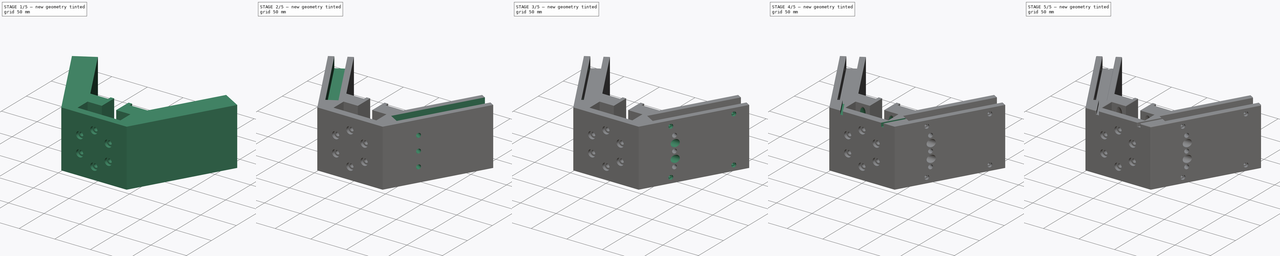
[diagram: build sequence overview — one tinted view per stage of 5, left to right]
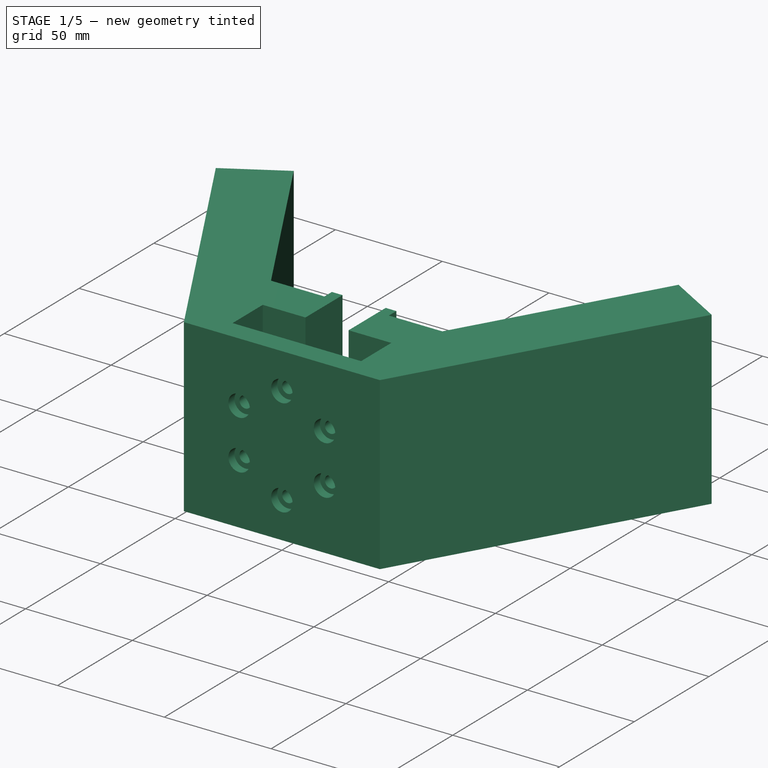
[diagram: stage 1 of 5 — iso view after this stage's code; geometry added in this stage tinted green]
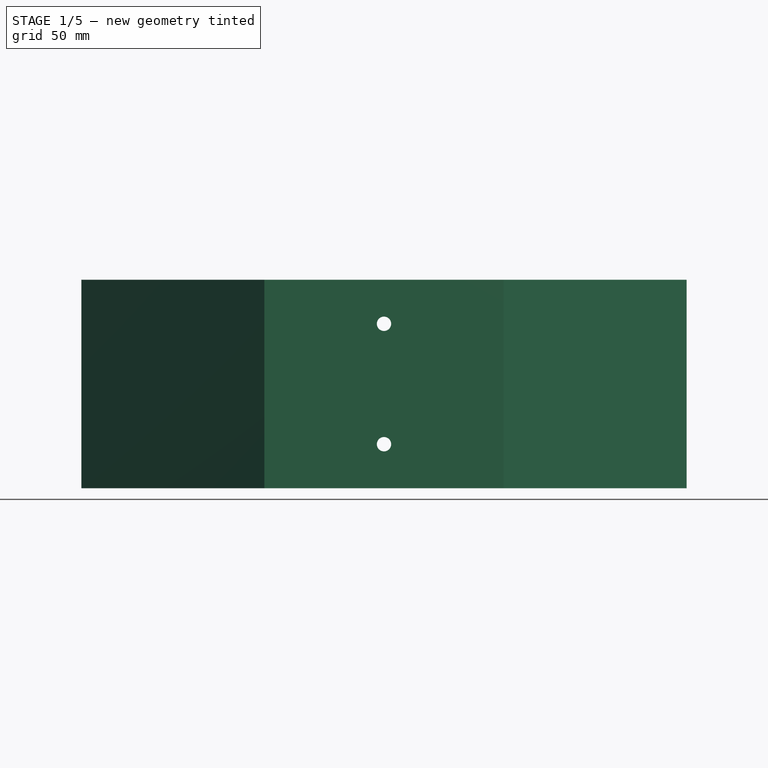
[diagram: stage 1 of 5 — front view after this stage's code; geometry added in this stage tinted green]
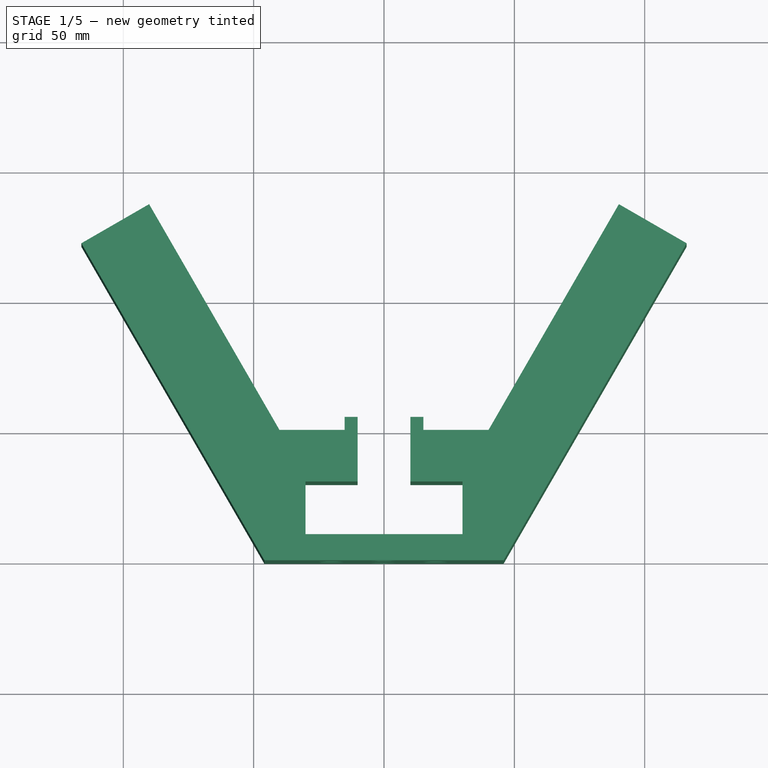
[diagram: stage 1 of 5 — top view after this stage's code; geometry added in this stage tinted green]
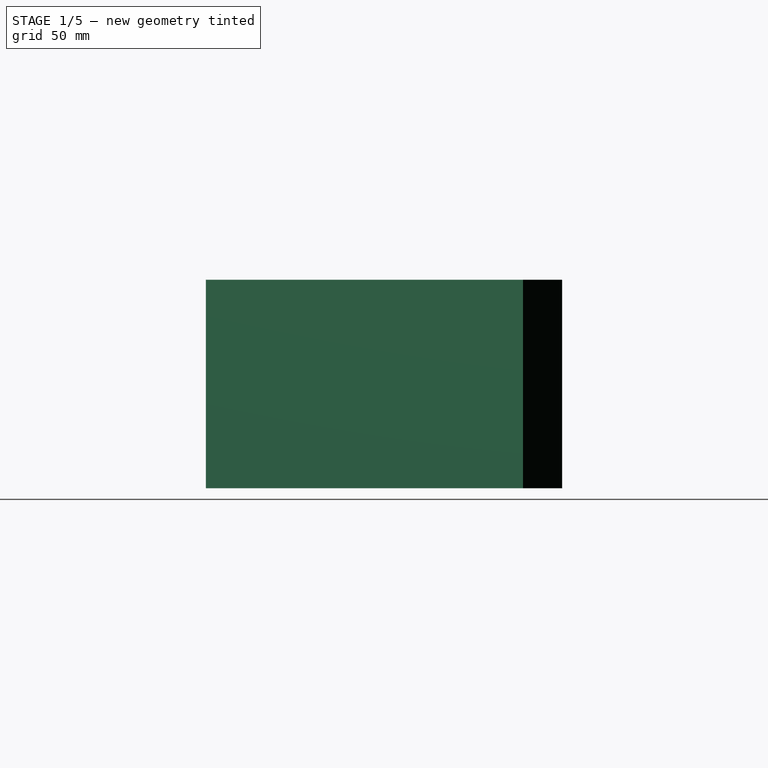
[diagram: stage 1 of 5 — right view after this stage's code; geometry added in this stage tinted green]
FCSTD DOCUMENT  (FreeCAD 2022.407R26244 +4693 (Git))
Label: BottomCorner
License: All rights reserved
LicenseURL: http://en.wikipedia.org/wiki/All_rights_reserved
objects: Sketcher::SketchObject×10, PartDesign::Mirrored×9, PartDesign::Hole×4, PartDesign::Pocket×3, PartDesign::Pad×1, PartDesign::Plane×1, PartDesign::SubtractiveLoft×1, PartDesign::Fillet×1, PartDesign::Chamfer×1, PartDesign::Body×1
note: 72 computed .brp shape members not serialized (recipe doc carries the construction recipe); baked Part::Feature solids carry a one-line shape summary decoded from their .brp

FEATURE [Sketcher::SketchObject] Sketch
  FullyConstrained = true
  MapMode = 2
  TreeRank = 13
  sketch-geometry (12):
    g0: LineSegment StartX=0 StartY=0 StartZ=0 EndX=0 EndY=10 EndZ=0
    g1: LineSegment StartX=0 StartY=0 StartZ=0 EndX=45.8735 EndY=0 EndZ=0
    g2: LineSegment StartX=45.8735 StartY=0 StartZ=0 EndX=116.081 EndY=121.603 EndZ=0
    g3: LineSegment StartX=116.081 StartY=121.603 StartZ=0 EndX=90.1 EndY=136.603 EndZ=0
    g4: LineSegment StartX=90.1 StartY=136.603 StartZ=0 EndX=40.1 EndY=50 EndZ=0
    g5: LineSegment StartX=40.1 StartY=50 StartZ=0 EndX=15.1 EndY=50 EndZ=0
    g6: LineSegment StartX=15.1 StartY=50 StartZ=0 EndX=15.1 EndY=55 EndZ=0
    g7: LineSegment StartX=15.1 StartY=55 StartZ=0 EndX=10.1 EndY=55 EndZ=0
    g8: LineSegment StartX=10.1 StartY=55 StartZ=0 EndX=10.1 EndY=30.2 EndZ=0
    g9: LineSegment StartX=10.1 StartY=30.2 StartZ=0 EndX=30.1 EndY=30.2 EndZ=0
    g10: LineSegment StartX=30.1 StartY=30.2 StartZ=0 EndX=30.1 EndY=10 EndZ=0
    g11: LineSegment StartX=30.1 StartY=10 StartZ=0 EndX=0 EndY=10 EndZ=0
  constraints (35):
    c: Coincident(g1,g2)
    c: Coincident(g2,g3)
    c: Coincident(g3,g4)
    c: Coincident(g5,g6)
    c: Coincident(g6,g7)
    c: Coincident(g7,g8)
    c: Coincident(g8,g9)
    c: Coincident(g9,g10)
    c: Coincident(g10,g11)
    c: Coincident(g0,g11)
    c: Vertical(g0)
    c: Vertical(g10)
    c: Vertical(g8)
    c: Vertical(g6)
    c: Horizontal(g11)
    c: Horizontal(g1)
    c: Horizontal(g7)
    c: Horizontal(g5)
    c: Horizontal(g9)
    c: Coincident(g4,g5)
    c: DistanceY(g10,g10) = 20.2
    c: DistanceX(g11,g11) = 30.1
    c: Coincident(g0,g1)
    c: Coincident(g0,g-1)
    c: Parallel(g4,g2)
    c: Perpendicular(g4,g3)
    c: Distance(g3) = 30
    c: DistanceY(g0,g0) = 10
    c: DistanceX(g0,g8) = 10.1
    c: DistanceX(g7,g7) = 5
    c: DistanceY(g8,g7) = 24.8
    c: Distance(g4) = 100
    c: Angle(g4,g5) = 2.0944
    c: DistanceY(g9,g4) = 19.8
    c: DistanceX(g7,g4) = 30
FEATURE [PartDesign::Pad] Pad  label="Body001"
  AddSubType = 0
  AlongSketchNormal = false
  CheckUpToFaceLimits = true
  ClaimChildren = false
  Direction = (0,0,1)
  Fit = 0
  FitJoin = 0
  InnerFit = 0
  InnerFitJoin = 0
  InnerTaperAngle = 0
  InnerTaperAngleRev = 0
  Length = 80
  Length2 = 100
  Linearize = true
  NewSolid = false
  Profile = -> Sketch
  Refine = true
  Suppress = false
  TreeRank = 14
  Type = 0
  _ProfileBasedVersion = 1
FEATURE [Sketcher::SketchObject] Sketch001
  ExternalGeometry = -> [Pad]
  FullyConstrained = true
  MapMode = 5
  Placement = pos=(0,0,0) rot=(1,0,0;1.5708rad)
  Support = -> [Pad]
  TreeRank = 15
  sketch-geometry (13):
    g0: LineSegment [constr] StartX=0 StartY=63.094 StartZ=0 EndX=-20 EndY=51.547 EndZ=0
    g1: LineSegment [constr] StartX=-20 StartY=51.547 StartZ=0 EndX=-20 EndY=28.453 EndZ=0
    g2: LineSegment [constr] StartX=-20 StartY=28.453 StartZ=0 EndX=-3.6e-15 EndY=16.906 EndZ=0
    g3: LineSegment [constr] StartX=-3.6e-15 StartY=16.906 StartZ=0 EndX=20 EndY=28.453 EndZ=0
    g4: LineSegment [constr] StartX=20 StartY=28.453 StartZ=0 EndX=20 EndY=51.547 EndZ=0
    g5: LineSegment [constr] StartX=20 StartY=51.547 StartZ=0 EndX=0 EndY=63.094 EndZ=0
    g6: Circle [constr] CenterX=0 CenterY=40 CenterZ=0 NormalX=0 NormalY=0 NormalZ=1 AngleXU=0 Radius=23.094
    g7: LineSegment [constr] StartX=0 StartY=63.094 StartZ=0 EndX=0 EndY=80 EndZ=0
    g8: LineSegment [constr] StartX=-3.6e-15 StartY=16.906 StartZ=0 EndX=0 EndY=0 EndZ=0
    g9: Circle CenterX=0 CenterY=63.094 CenterZ=0 NormalX=0 NormalY=0 NormalZ=1 AngleXU=0 Radius=2.5
    g10: Circle CenterX=20 CenterY=51.547 CenterZ=0 NormalX=0 NormalY=0 NormalZ=1 AngleXU=0 Radius=2.5
    g11: Circle CenterX=20 CenterY=28.453 CenterZ=0 NormalX=0 NormalY=0 NormalZ=1 AngleXU=0 Radius=2.5
    g12: Circle CenterX=-3.6e-15 CenterY=16.906 CenterZ=0 NormalX=0 NormalY=0 NormalZ=1 AngleXU=0 Radius=2.5
  constraints (29):
    c: Coincident(g0,g1)
    c: Coincident(g1,g2)
    c: Coincident(g2,g3)
    c: Coincident(g3,g4)
    c: Coincident(g4,g5)
    c: Coincident(g5,g0)
    c: Equal(g0, g1-g5) x5
    c: PointOnObject(g0,g6)
    c: PointOnObject(g1,g6)
    c: PointOnObject(g2,g6)
    c: PointOnObject(g3,g6)
    c: PointOnObject(g4,g6)
    c: PointOnObject(g5,g6)
    c: PointOnObject(g6,g-3)
    c: PointOnObject(g0,g-3)
    c: DistanceX(g2,g3) = 20
    c: Coincident(g2,g8)
    c: Coincident(g0,g7)
    c: Equal(g7,g8)
    c: Coincident(g8,g-3)
    c: Coincident(g-3,g7)
    c: Equal(g12,g11)
    c: Equal(g11,g10)
    c: Equal(g10,g9)
    c: Radius(g12) = 2.5
    c: Coincident(g12,g2)
    c: Coincident(g3,g11)
    c: Coincident(g4,g10)
    c: Coincident(g0,g9)
FEATURE [PartDesign::Mirrored] Mirrored
  AddSubType = 0
  BaseFeature = -> Pad
  CopyShape = false
  MirrorPlane = -> Sketch [V_Axis]
  NewSolid = false
  OriginalSubs = -> [Pad]
  Originals = -> [Pad]
  ParallelTransform = true
  Refine = true
  SubTransform = true
  Suppress = false
  TreeRank = 35
  _Version = 3
FEATURE [PartDesign::Hole] Hole  label="M5-2060"
  AddSubType = 1
  BaseFeature = -> Mirrored
  ClaimChildren = false
  CustomThreadClearance = 0
  Depth = 25
  DepthType = 0
  Diameter = 5.5
  DrillForDepth = false
  DrillPoint = 1
  DrillPointAngle = 118
  Fit = 0
  FitJoin = 0
  HoleCutCountersinkAngle = 90
  HoleCutCustomValues = false
  HoleCutDepth = 4.1
  HoleCutDiameter = 10.1
  HoleCutType = 8
  InnerFit = 0
  InnerFitJoin = 0
  Linearize = true
  ModelThread = false
  NewSolid = false
  Profile = -> Sketch001
  Refine = true
  Suppress = false
  Tapered = false
  TaperedAngle = 90
  ThreadClass = 0
  ThreadDepth = 25
  ThreadDepthType = 0
  ThreadDirection = 0
  ThreadFit = 0
  ThreadSize = 13
  ThreadType = 1
  Threaded = false
  TreeRank = 16
  UseCustomThreadClearance = false
  _ProfileBasedVersion = 1
FEATURE [Sketcher::SketchObject] Sketch002
  ExternalGeometry = -> [Hole]
  FullyConstrained = true
  MapMode = 5
  Placement = pos=(81.6756,141.466,0) rot=(0.186157,0.694747,0.694747;2.77349rad)
  Support = -> [Hole]
  TreeRank = 17
  sketch-geometry (12):
    g0: LineSegment StartX=-32.3276 StartY=-1.8e-15 StartZ=0 EndX=-17.1276 EndY=-1.8e-15 EndZ=0
    g1: LineSegment StartX=-17.1276 StartY=-1.8e-15 StartZ=0 EndX=-17.1276 EndY=15.2 EndZ=0
    g2: LineSegment StartX=-17.1276 StartY=15.2 StartZ=0 EndX=-32.3276 EndY=15.2 EndZ=0
    g3: LineSegment StartX=-32.3276 StartY=15.2 StartZ=0 EndX=-32.3276 EndY=-1.8e-15 EndZ=0
    g4: LineSegment StartX=-32.3276 StartY=80 StartZ=0 EndX=-17.1276 EndY=80 EndZ=0
    g5: LineSegment StartX=-17.1276 StartY=80 StartZ=0 EndX=-17.1276 EndY=64.8 EndZ=0
    g6: LineSegment StartX=-17.1276 StartY=64.8 StartZ=0 EndX=-32.3276 EndY=64.8 EndZ=0
    g7: LineSegment StartX=-32.3276 StartY=64.8 StartZ=0 EndX=-32.3276 EndY=80 EndZ=0
    g8: LineSegment [constr] StartX=-39.7276 StartY=80 StartZ=0 EndX=-24.7276 EndY=80 EndZ=0
    g9: LineSegment [constr] StartX=-24.7276 StartY=80 StartZ=0 EndX=-9.72762 EndY=80 EndZ=0
    g10: LineSegment [constr] StartX=-39.7276 StartY=-1.4e-15 StartZ=0 EndX=-24.7276 EndY=-1.1e-15 EndZ=0
    g11: LineSegment [constr] StartX=-24.7276 StartY=-1.1e-15 StartZ=0 EndX=-9.72762 EndY=-3e-16 EndZ=0
  constraints (32):
    c: Coincident(g0,g1)
    c: Coincident(g1,g2)
    c: Coincident(g2,g3)
    c: Coincident(g3,g0)
    c: Horizontal(g0)
    c: Horizontal(g2)
    c: Vertical(g1)
    c: Vertical(g3)
    c: PointOnObject(g0,g-4)
    c: Coincident(g4,g5)
    c: Coincident(g5,g6)
    c: Coincident(g6,g7)
    c: Coincident(g7,g4)
    c: Horizontal(g4)
    c: Horizontal(g6)
    c: Vertical(g5)
    c: Vertical(g7)
    c: PointOnObject(g4,g-3)
    c: Coincident(g8,g-3)
    c: Coincident(g9,g8)
    c: Coincident(g9,g-3)
    c: Equal(g9,g8)
    c: Symmetric(g4,g4,g8)
    c: Equal(g6,g7)
    c: Equal(g7,g3)
    c: Equal(g2,g3)
    c: DistanceX(g6,g6) = 15.2
    c: Coincident(g-4,g10)
    c: Coincident(g10,g11)
    c: Coincident(g11,g-4)
    c: Symmetric(g0,g0,g10)
    c: Equal(g10,g11)
FEATURE [PartDesign::Mirrored] Mirrored001
  AddSubType = 0
  BaseFeature = -> Hole
  CopyShape = false
  MirrorPlane = -> Sketch001 [V_Axis]
  NewSolid = false
  OriginalSubs = -> [Hole]
  Originals = -> [Hole]
  ParallelTransform = true
  Refine = true
  SubTransform = true
  Suppress = false
  TreeRank = 36
  _Version = 3
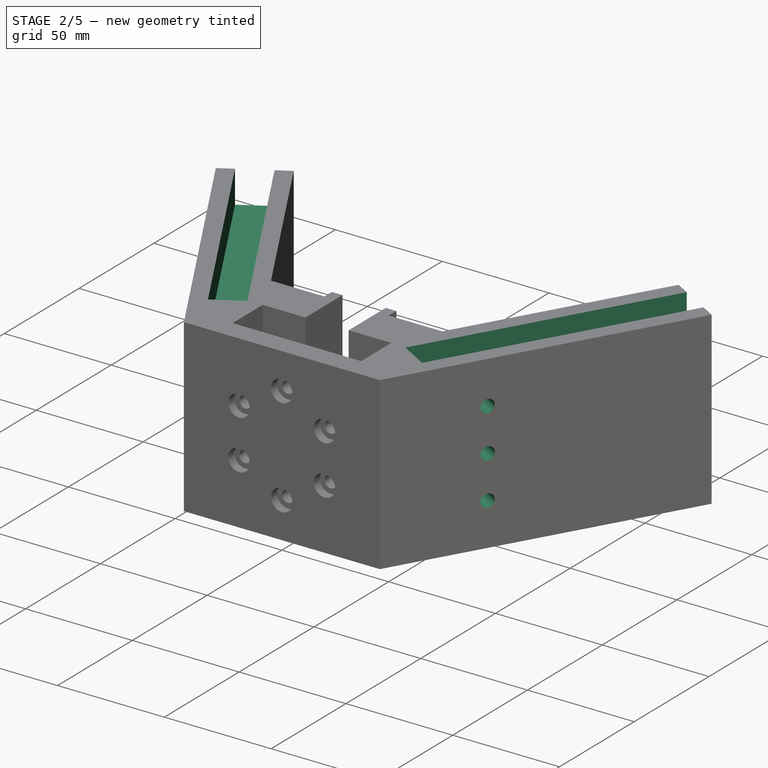
[diagram: stage 2 of 5 — iso view after this stage's code; geometry added in this stage tinted green]
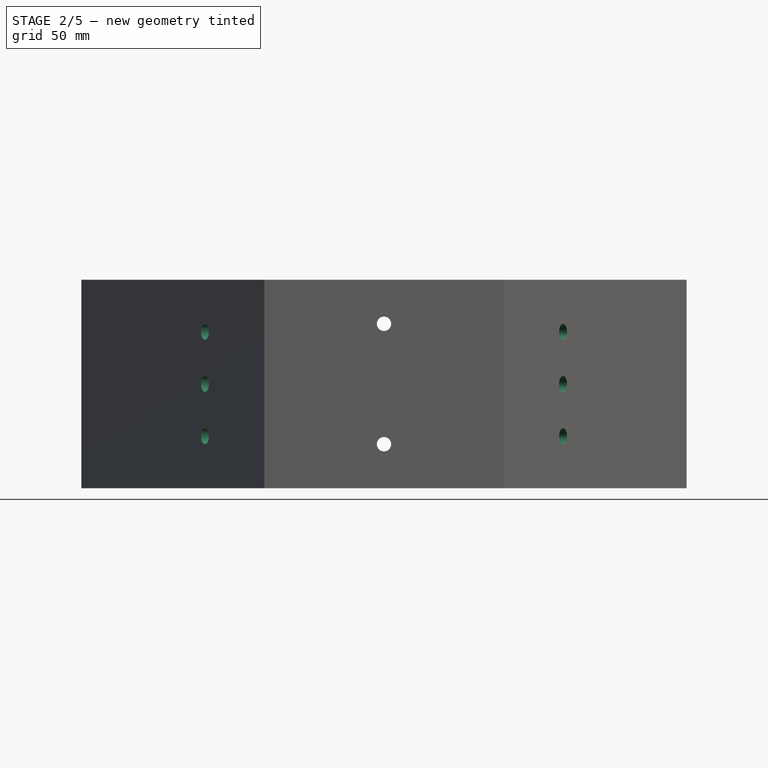
[diagram: stage 2 of 5 — front view after this stage's code; geometry added in this stage tinted green]
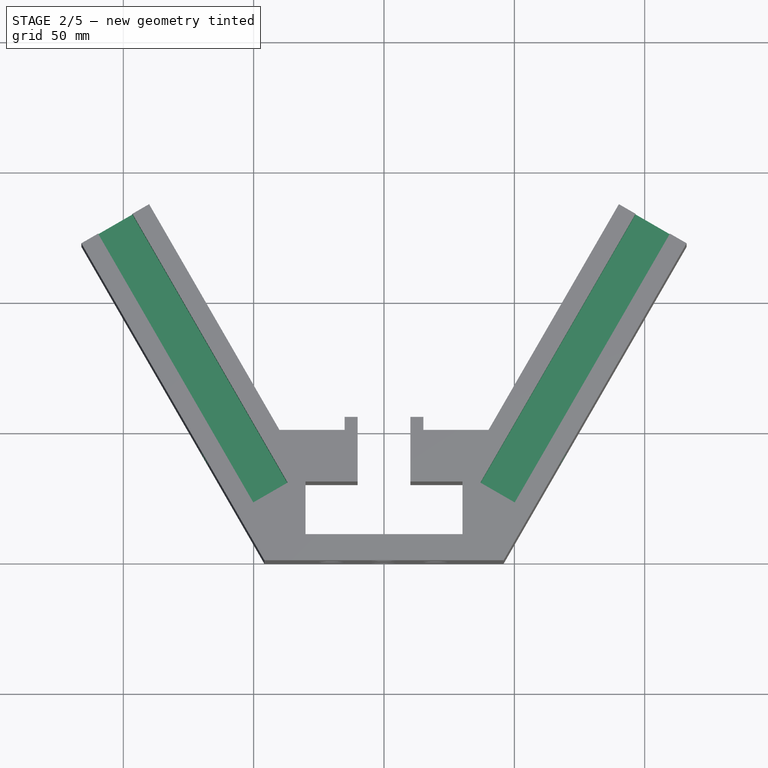
[diagram: stage 2 of 5 — top view after this stage's code; geometry added in this stage tinted green]
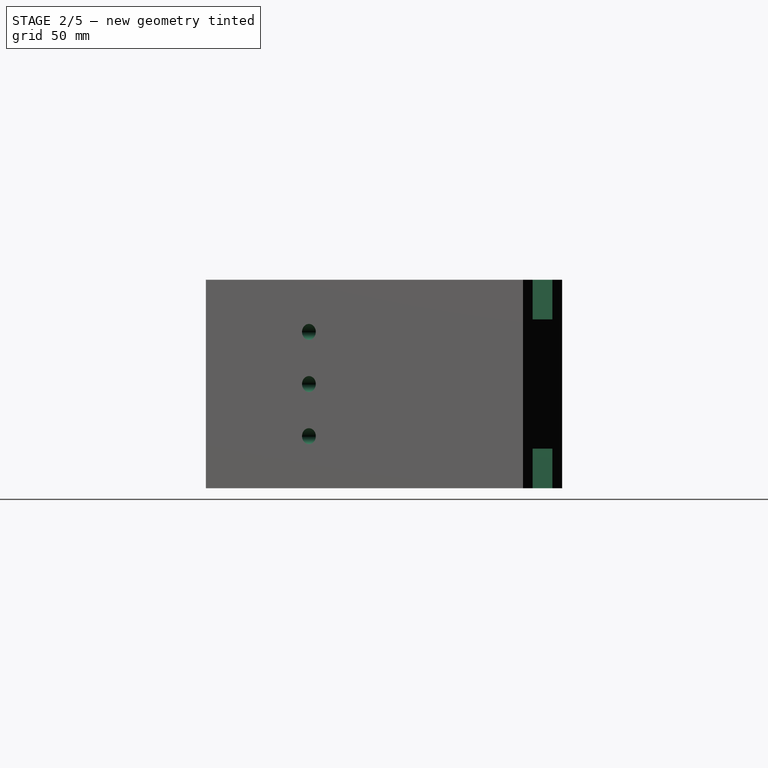
[diagram: stage 2 of 5 — right view after this stage's code; geometry added in this stage tinted green]
FEATURE [PartDesign::Pocket] Pocket  label="OpenBeam sockets"
  AddSubType = 1
  BaseFeature = -> Mirrored001
  CheckUpToFaceLimits = true
  ClaimChildren = false
  Fit = 0
  FitJoin = 0
  InnerFit = 0
  InnerFitJoin = 0
  InnerTaperAngle = 0
  InnerTaperAngleRev = 0
  Length = 119.07
  Length2 = 100
  Linearize = true
  NewSolid = false
  Profile = -> Sketch002
  Refine = true
  Suppress = false
  TreeRank = 18
  Type = 0
  _ProfileBasedVersion = 1
  _Version = 1
  expr: Length = 121.75 - 2.68mm
FEATURE [Sketcher::SketchObject] Sketch003
  ExternalGeometry = -> [Pocket]
  FullyConstrained = true
  MapMode = 5
  Placement = pos=(34.4051,-19.8638,0) rot=(0.774597,0.447214,0.447214;1.82348rad)
  Support = -> [Pocket]
  TreeRank = 19
  sketch-geometry (5):
    g0: LineSegment [constr] StartX=68.5513 StartY=60 StartZ=0 EndX=68.5513 EndY=40 EndZ=0
    g1: LineSegment [constr] StartX=68.5513 StartY=40 StartZ=0 EndX=68.5513 EndY=20 EndZ=0
    g2: Circle CenterX=68.5513 CenterY=60 CenterZ=0 NormalX=0 NormalY=0 NormalZ=1 AngleXU=0 Radius=1.5
    g3: Circle CenterX=68.5513 CenterY=40 CenterZ=0 NormalX=0 NormalY=0 NormalZ=1 AngleXU=0 Radius=1.5
    g4: Circle CenterX=68.5513 CenterY=20 CenterZ=0 NormalX=0 NormalY=0 NormalZ=1 AngleXU=0 Radius=1.5
  constraints (13):
    c: Vertical(g0)
    c: Coincident(g0,g1)
    c: Vertical(g1)
    c: Equal(g1,g0)
    c: DistanceX(g-3,g0) = 5.2
    c: DistanceY(g0,g-3) = 20
    c: DistanceY(g0,g0) = 20
    c: Coincident(g2,g0)
    c: Coincident(g3,g0)
    c: Coincident(g4,g1)
    c: Equal(g4,g3)
    c: Equal(g3,g2)
    c: Radius(g2) = 1.5
FEATURE [PartDesign::Mirrored] Mirrored002
  AddSubType = 0
  BaseFeature = -> Pocket
  CopyShape = false
  MirrorPlane = -> YZ_Plane
  NewSolid = false
  OriginalSubs = -> [Pocket]
  Originals = -> [Pocket]
  ParallelTransform = true
  Refine = true
  SubTransform = true
  Suppress = false
  TreeRank = 37
  _Version = 3
FEATURE [PartDesign::Hole] Hole001  label="Motor frame M3"
  AddSubType = 1
  BaseFeature = -> Mirrored002
  ClaimChildren = false
  CustomThreadClearance = 0
  Depth = 55
  DepthType = 0
  Diameter = 3.4
  DrillForDepth = false
  DrillPoint = 1
  DrillPointAngle = 118
  Fit = 0
  FitJoin = 0
  HoleCutCountersinkAngle = 90
  HoleCutCustomValues = false
  HoleCutDepth = 27
  HoleCutDiameter = 6.1
  HoleCutType = 1
  InnerFit = 0
  InnerFitJoin = 0
  Linearize = true
  ModelThread = false
  NewSolid = false
  Profile = -> Sketch003
  Refine = true
  Suppress = false
  Tapered = false
  TaperedAngle = 90
  ThreadClass = 0
  ThreadDepth = 55
  ThreadDepthType = 0
  ThreadDirection = 0
  ThreadFit = 0
  ThreadSize = 9
  ThreadType = 1
  Threaded = false
  TreeRank = 20
  UseCustomThreadClearance = false
  _ProfileBasedVersion = 1
FEATURE [Sketcher::SketchObject] Sketch004
  ExternalGeometry = -> [Hole001]
  FullyConstrained = true
  MapMode = 5
  Placement = pos=(34.4051,-19.8638,0) rot=(0.774597,0.447214,0.447214;1.82348rad)
  Support = -> [Hole001]
  TreeRank = 21
  sketch-geometry (11):
    g0: LineSegment [constr] StartX=44.2813 StartY=80 StartZ=0 EndX=44.2813 EndY=72.4 EndZ=0
    g1: LineSegment [constr] StartX=44.2813 StartY=72.4 StartZ=0 EndX=44.2813 EndY=64.8 EndZ=0
    g2: LineSegment [constr] StartX=44.2813 StartY=15.2 StartZ=0 EndX=44.2813 EndY=7.6 EndZ=0
    g3: LineSegment [constr] StartX=44.2813 StartY=7.6 StartZ=0 EndX=44.2813 EndY=1.42e-14 EndZ=0
    g4: LineSegment [constr] StartX=44.2813 StartY=7.6 StartZ=0 EndX=163.351 EndY=7.6 EndZ=0
    g5: Circle CenterX=63.8163 CenterY=72.4 CenterZ=0 NormalX=0 NormalY=0 NormalZ=1 AngleXU=0 Radius=1.5
    g6: Circle CenterX=143.816 CenterY=72.4 CenterZ=0 NormalX=0 NormalY=0 NormalZ=1 AngleXU=0 Radius=1.5
    g7: Circle CenterX=63.8163 CenterY=7.6 CenterZ=0 NormalX=0 NormalY=0 NormalZ=1 AngleXU=0 Radius=1.5
    g8: Circle CenterX=143.816 CenterY=7.6 CenterZ=0 NormalX=0 NormalY=0 NormalZ=1 AngleXU=0 Radius=1.5
    g9: LineSegment [constr] StartX=44.2813 StartY=72.4 StartZ=0 EndX=63.8163 EndY=72.4 EndZ=0
    g10: LineSegment [constr] StartX=143.816 StartY=72.4 StartZ=0 EndX=163.351 EndY=72.4 EndZ=0
  constraints (30):
    c: Coincident(g-3,g0)
    c: PointOnObject(g0,g-3)
    c: Coincident(g0,g1)
    c: Coincident(g1,g-3)
    c: Coincident(g-4,g2)
    c: PointOnObject(g2,g-4)
    c: Coincident(g2,g3)
    c: Coincident(g3,g-4)
    c: Equal(g0,g1)
    c: Equal(g1,g2)
    c: PointOnObject(g10,g-5)
    c: Coincident(g4,g2)
    c: PointOnObject(g4,g-5)
    c: Horizontal(g4)
    c: PointOnObject(g7,g4)
    c: PointOnObject(g8,g4)
    c: Equal(g7,g8)
    c: Equal(g8,g6)
    c: Equal(g6,g5)
    c: Radius(g5) = 1.5
    c: DistanceX(g5,g6) = 80
    c: Coincident(g0,g9)
    c: Coincident(g9,g5)
    c: Coincident(g10,g6)
    c: Horizontal(g10)
    c: Horizontal(g9)
    c: Equal(g9,g10)
    c: Vertical(g5,g7)
    c: Vertical(g6,g8)
    c: Horizontal(g5,g6)
FEATURE [PartDesign::Mirrored] Mirrored003
  AddSubType = 0
  BaseFeature = -> Hole001
  CopyShape = false
  MirrorPlane = -> YZ_Plane
  NewSolid = false
  OriginalSubs = -> [Hole001]
  Originals = -> [Hole001]
  ParallelTransform = true
  Refine = true
  SubTransform = true
  Suppress = false
  TreeRank = 38
  _Version = 3
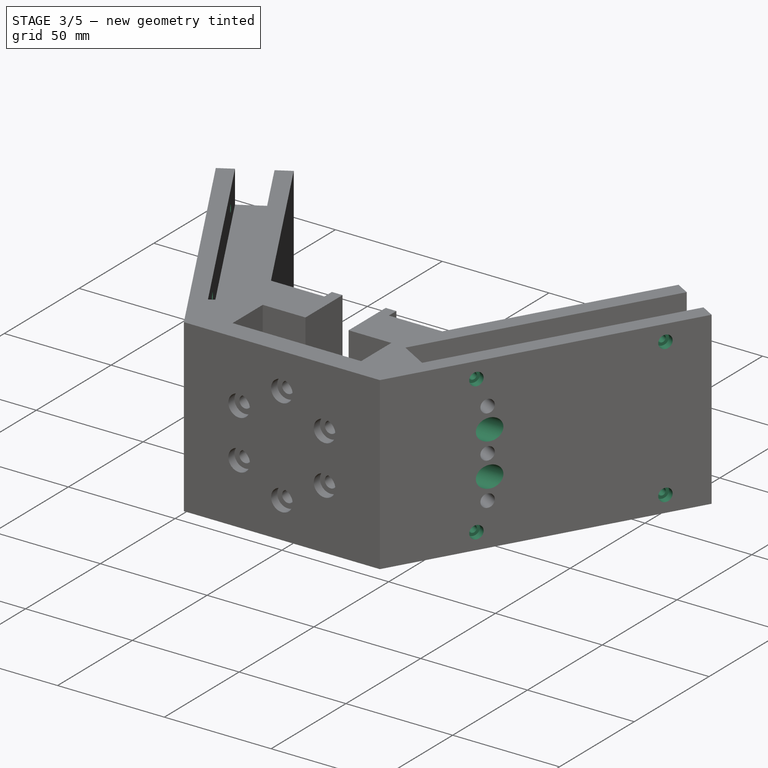
[diagram: stage 3 of 5 — iso view after this stage's code; geometry added in this stage tinted green]
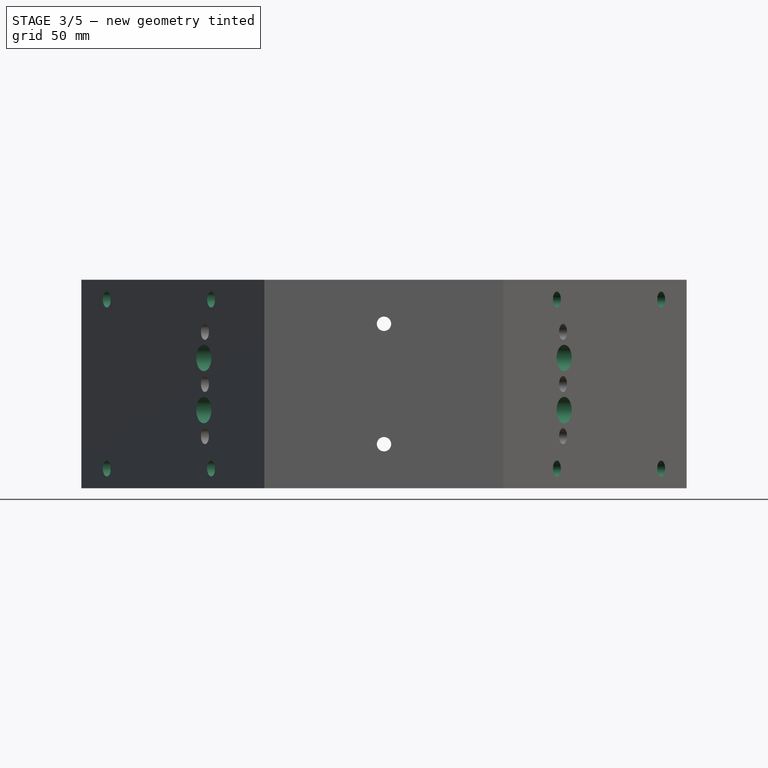
[diagram: stage 3 of 5 — front view after this stage's code; geometry added in this stage tinted green]
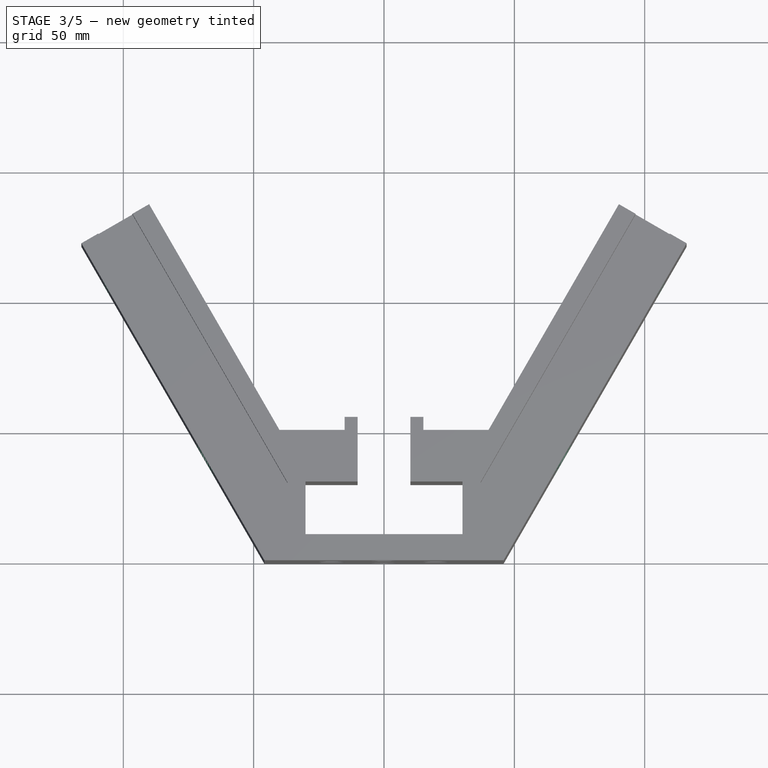
[diagram: stage 3 of 5 — top view after this stage's code; geometry added in this stage tinted green]
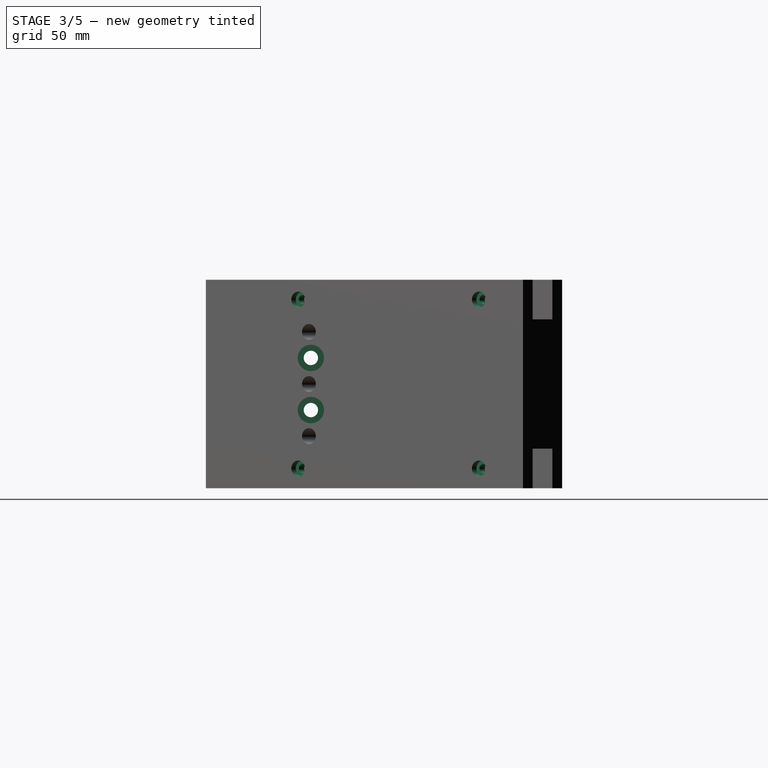
[diagram: stage 3 of 5 — right view after this stage's code; geometry added in this stage tinted green]
FEATURE [PartDesign::Hole] Hole002  label="OpenBeam M3"
  AddSubType = 1
  BaseFeature = -> Mirrored003
  ClaimChildren = false
  CustomThreadClearance = 0
  Depth = 15
  DepthType = 0
  Diameter = 3.4
  DrillForDepth = false
  DrillPoint = 1
  DrillPointAngle = 118
  Fit = 0
  FitJoin = 0
  HoleCutCountersinkAngle = 90
  HoleCutCustomValues = false
  HoleCutDepth = 3.4
  HoleCutDiameter = 6.1
  HoleCutType = 1
  InnerFit = 0
  InnerFitJoin = 0
  Linearize = true
  ModelThread = false
  NewSolid = false
  Profile = -> Sketch004
  Refine = true
  Suppress = false
  Tapered = false
  TaperedAngle = 90
  ThreadClass = 0
  ThreadDepth = 15
  ThreadDepthType = 0
  ThreadDirection = 0
  ThreadFit = 0
  ThreadSize = 9
  ThreadType = 1
  Threaded = false
  TreeRank = 22
  UseCustomThreadClearance = false
  _ProfileBasedVersion = 1
FEATURE [PartDesign::Plane] DatumPlane  label="M5-2040 datum plane"
  AttachmentOffset = pos=(0,0,-63) rot=(0,1,0;3.14159rad)
  Length = 136.603
  MapMode = 5
  MinimumLength = 10
  MinimumWidth = 10
  Placement = pos=(73.1,0,0) rot=(0.57735,0.57735,0.57735;2.0944rad)
  ResizeMode = 0
  Support = -> [Hole002]
  TreeRank = 23
  Width = 80
FEATURE [Sketcher::SketchObject] Sketch005
  ExternalGeometry = -> [Hole002]
  FullyConstrained = true
  MapMode = 5
  Placement = pos=(73.1,0,0) rot=(0.57735,0.57735,0.57735;2.0944rad)
  Support = -> [DatumPlane]
  TreeRank = 24
  sketch-geometry (6):
    g0: LineSegment [constr] StartX=30.2 StartY=0 StartZ=0 EndX=30.2 EndY=80 EndZ=0
    g1: LineSegment [constr] StartX=40.25 StartY=80 StartZ=0 EndX=40.25 EndY=50 EndZ=0
    g2: LineSegment [constr] StartX=40.25 StartY=50 StartZ=0 EndX=40.25 EndY=30 EndZ=0
    g3: LineSegment [constr] StartX=40.25 StartY=30 StartZ=0 EndX=40.25 EndY=0 EndZ=0
    g4: Circle CenterX=40.25 CenterY=50 CenterZ=0 NormalX=0 NormalY=0 NormalZ=1 AngleXU=0 Radius=2.5
    g5: Circle CenterX=40.25 CenterY=30 CenterZ=0 NormalX=0 NormalY=0 NormalZ=1 AngleXU=0 Radius=2.5
  constraints (17):
    c: PointOnObject(g0,g-1)
    c: Vertical(g0)
    c: Coincident(g0,g-4)
    c: PointOnObject(g1,g-3)
    c: Vertical(g1)
    c: Coincident(g1,g2)
    c: Vertical(g2)
    c: Coincident(g2,g3)
    c: PointOnObject(g3,g-1)
    c: Vertical(g3)
    c: DistanceX(g-4,g1) = 10.05
    c: Equal(g3,g1)
    c: DistanceY(g2,g2) = 20
    c: Coincident(g4,g1)
    c: Coincident(g5,g2)
    c: Equal(g5,g4)
    c: Radius(g4) = 2.5
FEATURE [PartDesign::Mirrored] Mirrored004
  AddSubType = 0
  BaseFeature = -> Hole002
  CopyShape = false
  MirrorPlane = -> YZ_Plane
  NewSolid = false
  OriginalSubs = -> [Hole002]
  Originals = -> [Hole002]
  ParallelTransform = true
  Refine = true
  SubTransform = true
  Suppress = false
  TreeRank = 39
  _Version = 3
FEATURE [PartDesign::Hole] Hole003  label="M5-2040"
  AddSubType = 1
  BaseFeature = -> Mirrored004
  ClaimChildren = false
  CustomThreadClearance = 0
  Depth = 65
  DepthType = 0
  Diameter = 5.5
  DrillForDepth = false
  DrillPoint = 1
  DrillPointAngle = 118
  Fit = 0
  FitJoin = 0
  HoleCutCountersinkAngle = 90
  HoleCutCustomValues = true
  HoleCutDepth = 58
  HoleCutDiameter = 10.1
  HoleCutType = 8
  InnerFit = 0
  InnerFitJoin = 0
  Linearize = true
  ModelThread = false
  NewSolid = false
  Profile = -> Sketch005
  Refine = true
  Suppress = false
  Tapered = false
  TaperedAngle = 90
  ThreadClass = 0
  ThreadDepth = 65
  ThreadDepthType = 0
  ThreadDirection = 0
  ThreadFit = 0
  ThreadSize = 13
  ThreadType = 1
  Threaded = false
  TreeRank = 25
  UseCustomThreadClearance = false
  _ProfileBasedVersion = 1
FEATURE [Sketcher::SketchObject] Sketch006
  ExternalGeometry = -> [Hole003]
  FullyConstrained = true
  MapMode = 5
  Placement = pos=(0,50,0) rot=(0,0.707107,0.707107;3.14159rad)
  Support = -> [Hole003]
  TreeRank = 26
  sketch-geometry (8):
    g0: LineSegment [constr] StartX=-30.1 StartY=80 StartZ=0 EndX=-20.1 EndY=80 EndZ=0
    g1: LineSegment [constr] StartX=-20.1 StartY=80 StartZ=0 EndX=-10.1 EndY=80 EndZ=0
    g2: LineSegment [constr] StartX=-20.1 StartY=80 StartZ=0 EndX=-20.1 EndY=0 EndZ=0
    g3: Ellipse CenterX=-20.1 CenterY=30 CenterZ=0 NormalX=0 NormalY=0 NormalZ=1 MajorRadius=7.2111 MinorRadius=4 AngleXU=1.5708
    g4: LineSegment [constr] StartX=-20.1 StartY=37.2111 StartZ=0 EndX=-20.1 EndY=22.7889 EndZ=0
    g5: LineSegment [constr] StartX=-24.1 StartY=30 StartZ=0 EndX=-16.1 EndY=30 EndZ=0
    g6: GeomPoint [constr] X=-20.1 Y=36 Z=0
    g7: GeomPoint [constr] X=-20.1 Y=24 Z=0
  constraints (14):
    c: Coincident(g0,g-3)
    c: PointOnObject(g0,g-3)
    c: Coincident(g1,g0)
    c: Coincident(g1,g-3)
    c: Coincident(g2,g0)
    c: PointOnObject(g2,g-1)
    c: Vertical(g2)
    c: Equal(g0,g1)
    c: InternalAlignment(g4-g7 -> g3) x4
    c: PointOnObject(g3,g2)
    c: DistanceY(g3) = 30
    c: DistanceX(g5,g5) = 8
    c: PointOnObject(g4,g2)
    c: DistanceY(g7,g6) = 12
FEATURE [Sketcher::SketchObject] Sketch007
  ExternalGeometry = -> [Hole003]
  FullyConstrained = true
  MapMode = 5
  Placement = pos=(0,30.2,0) rot=(1,0,0;1.5708rad)
  Support = -> [Hole003]
  TreeRank = 27
  sketch-geometry (8):
    g0: LineSegment [constr] StartX=10.1 StartY=80 StartZ=0 EndX=20.1 EndY=80 EndZ=0
    g1: LineSegment [constr] StartX=20.1 StartY=80 StartZ=0 EndX=30.1 EndY=80 EndZ=0
    g2: LineSegment [constr] StartX=20.1 StartY=80 StartZ=0 EndX=20.1 EndY=0 EndZ=0
    g3: Ellipse CenterX=20.1 CenterY=68.7889 CenterZ=0 NormalX=0 NormalY=0 NormalZ=1 MajorRadius=7.2111 MinorRadius=4 AngleXU=1.5708
    g4: LineSegment [constr] StartX=20.1 StartY=76 StartZ=0 EndX=20.1 EndY=61.5778 EndZ=0
    g5: LineSegment [constr] StartX=16.1 StartY=68.7889 StartZ=0 EndX=24.1 EndY=68.7889 EndZ=0
    g6: GeomPoint [constr] X=20.1 Y=74.7889 Z=0
    g7: GeomPoint [constr] X=20.1 Y=62.7889 Z=0
  constraints (14):
    c: Coincident(g-3,g0)
    c: PointOnObject(g0,g-3)
    c: Coincident(g0,g1)
    c: Coincident(g1,g-3)
    c: Equal(g1,g0)
    c: Coincident(g2,g0)
    c: Vertical(g2)
    c: PointOnObject(g2,g-1)
    c: InternalAlignment(g4-g7 -> g3) x4
    c: PointOnObject(g3,g2)
    c: DistanceX(g5,g5) = 8
    c: DistanceY(g7,g6) = 12
    c: DistanceY(g4,g0) = 4
    c: PointOnObject(g4,g2)
FEATURE [PartDesign::Mirrored] Mirrored005
  AddSubType = 0
  BaseFeature = -> Hole003
  CopyShape = false
  MirrorPlane = -> YZ_Plane
  NewSolid = false
  OriginalSubs = -> [Hole003]
  Originals = -> [Hole003]
  ParallelTransform = true
  Refine = true
  SubTransform = true
  Suppress = false
  TreeRank = 40
  _Version = 3
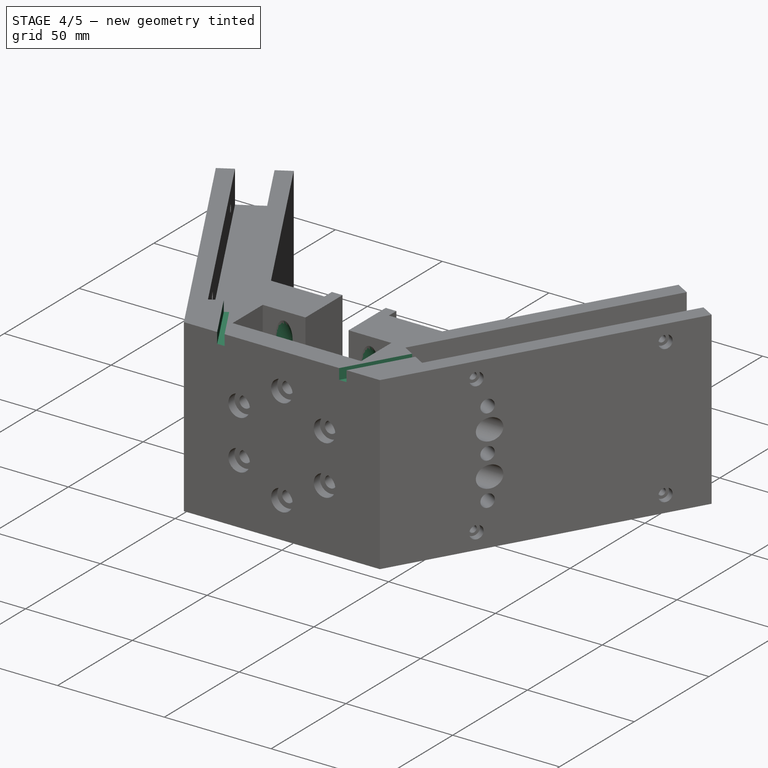
[diagram: stage 4 of 5 — iso view after this stage's code; geometry added in this stage tinted green]
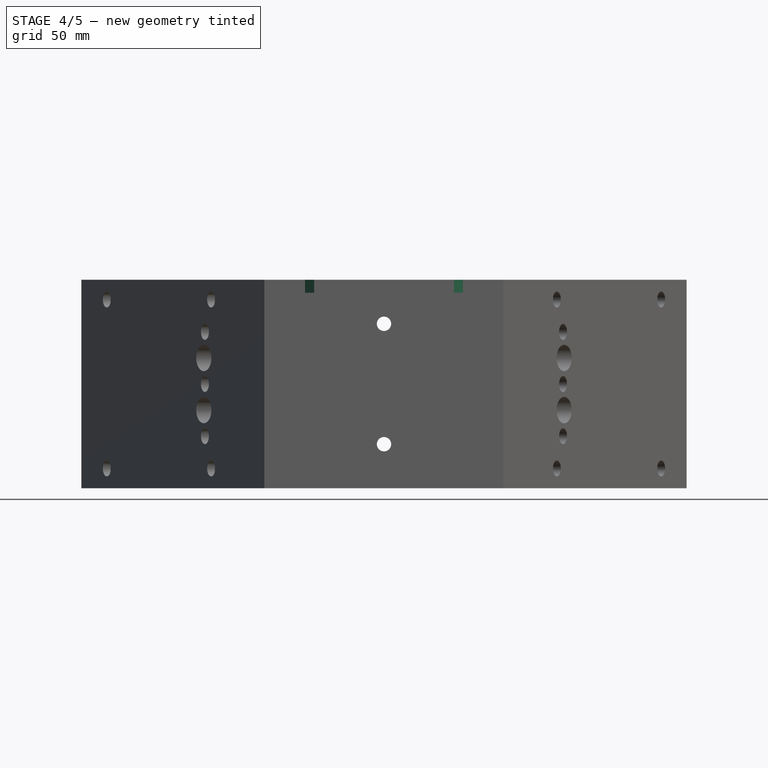
[diagram: stage 4 of 5 — front view after this stage's code; geometry added in this stage tinted green]
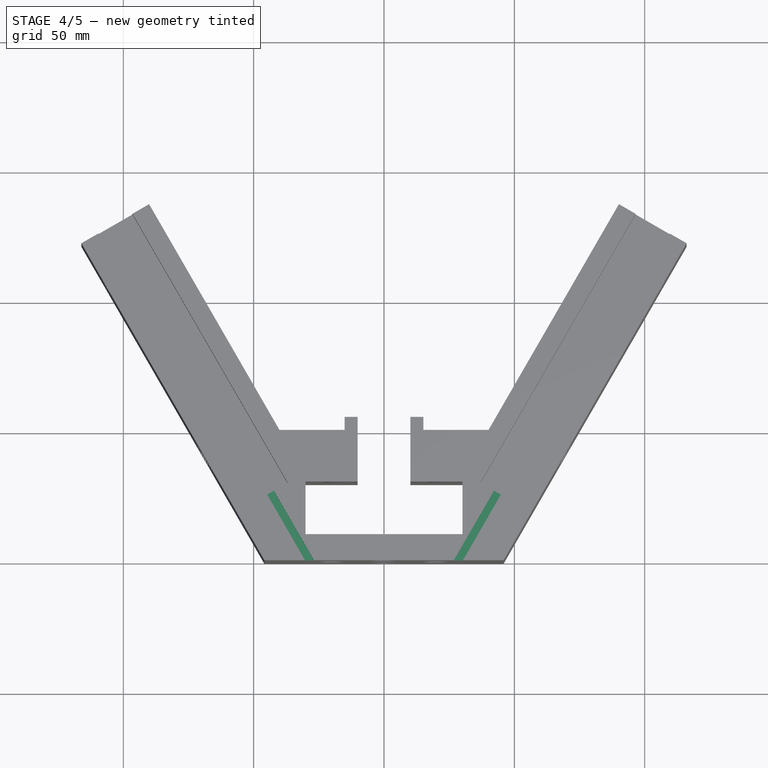
[diagram: stage 4 of 5 — top view after this stage's code; geometry added in this stage tinted green]
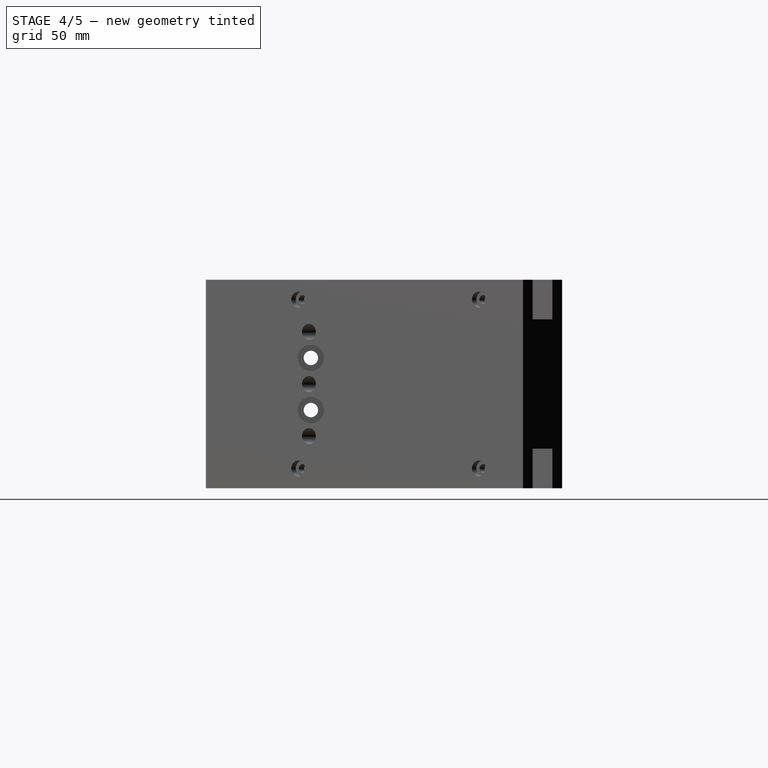
[diagram: stage 4 of 5 — right view after this stage's code; geometry added in this stage tinted green]
FEATURE [PartDesign::SubtractiveLoft] Loft  label="Cable passthrough"
  AddSubType = 1
  BaseFeature = -> Mirrored005
  ClaimChildren = false
  Closed = false
  Fit = 0
  FitJoin = 0
  InnerFit = 0
  InnerFitJoin = 0
  Linearize = true
  NewSolid = false
  Profile = -> Sketch006
  Refine = true
  Ruled = false
  Sections = -> [Sketch007]
  SplitProfile = false
  Suppress = false
  TreeRank = 28
  _ProfileBasedVersion = 1
FEATURE [Sketcher::SketchObject] Sketch008
  ExternalGeometry = -> [Loft]
  FullyConstrained = true
  MapMode = 5
  Placement = pos=(22.1406,38.3487,5.9e-15) rot=(0.186157,0.694747,0.694747;2.77349rad)
  Support = -> [Loft]
  TreeRank = 29
  sketch-geometry (7):
    g0: LineSegment [constr] StartX=-32.3276 StartY=80 StartZ=0 EndX=-26.2276 EndY=80 EndZ=0
    g1: LineSegment [constr] StartX=-26.2276 StartY=80 StartZ=0 EndX=-23.2276 EndY=80 EndZ=0
    g2: LineSegment [constr] StartX=-23.2276 StartY=80 StartZ=0 EndX=-17.1276 EndY=80 EndZ=0
    g3: LineSegment StartX=-26.2276 StartY=80 StartZ=0 EndX=-23.2276 EndY=80 EndZ=0
    g4: LineSegment StartX=-23.2276 StartY=80 StartZ=0 EndX=-23.2276 EndY=75 EndZ=0
    g5: LineSegment StartX=-23.2276 StartY=75 StartZ=0 EndX=-26.2276 EndY=75 EndZ=0
    g6: LineSegment StartX=-26.2276 StartY=75 StartZ=0 EndX=-26.2276 EndY=80 EndZ=0
  constraints (18):
    c: Coincident(g-3,g0)
    c: PointOnObject(g0,g-3)
    c: Coincident(g0,g1)
    c: PointOnObject(g1,g-3)
    c: Coincident(g1,g2)
    c: Coincident(g2,g-3)
    c: Equal(g2,g0)
    c: DistanceX(g1,g1) = 3
    c: Coincident(g3,g4)
    c: Coincident(g4,g5)
    c: Coincident(g5,g6)
    c: Coincident(g6,g3)
    c: Horizontal(g5)
    c: Vertical(g4)
    c: Vertical(g6)
    c: Coincident(g3,g0)
    c: Coincident(g3,g1)
    c: DistanceY(g6,g6) = 5
FEATURE [PartDesign::Mirrored] Mirrored006
  AddSubType = 0
  BaseFeature = -> Loft
  CopyShape = false
  MirrorPlane = -> YZ_Plane
  NewSolid = false
  OriginalSubs = -> [Loft]
  Originals = -> [Loft]
  ParallelTransform = true
  Refine = true
  SubTransform = true
  Suppress = false
  TreeRank = 41
  _Version = 3
FEATURE [PartDesign::Pocket] Pocket001  label="Rail notch"
  AddSubType = 1
  BaseFeature = -> Mirrored006
  CheckUpToFaceLimits = true
  ClaimChildren = false
  Fit = 0
  FitJoin = 0
  InnerFit = 0
  InnerFitJoin = 0
  InnerTaperAngle = 0
  InnerTaperAngleRev = 0
  Length = 5
  Length2 = 100
  Linearize = true
  NewSolid = false
  Profile = -> Sketch008
  Refine = true
  Suppress = false
  TreeRank = 30
  Type = 1
  _ProfileBasedVersion = 1
  _Version = 1
FEATURE [PartDesign::Mirrored] Mirrored007
  AddSubType = 0
  BaseFeature = -> Pocket001
  CopyShape = false
  MirrorPlane = -> YZ_Plane
  NewSolid = false
  OriginalSubs = -> [Pocket001]
  Originals = -> [Pocket001]
  ParallelTransform = true
  Refine = true
  SubTransform = true
  Suppress = false
  TreeRank = 42
  _Version = 3
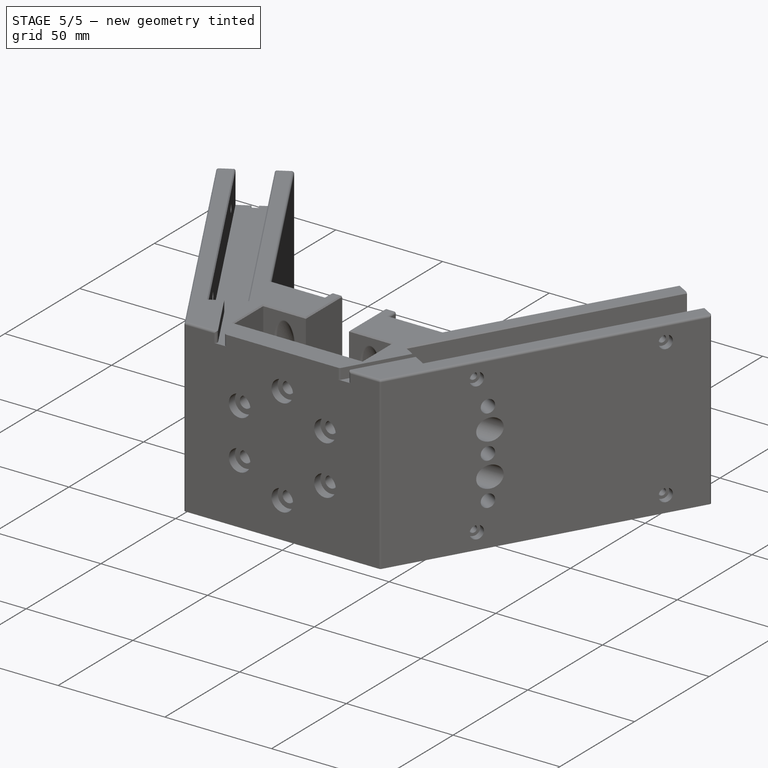
[diagram: stage 5 of 5 — iso view after this stage's code; geometry added in this stage tinted green]
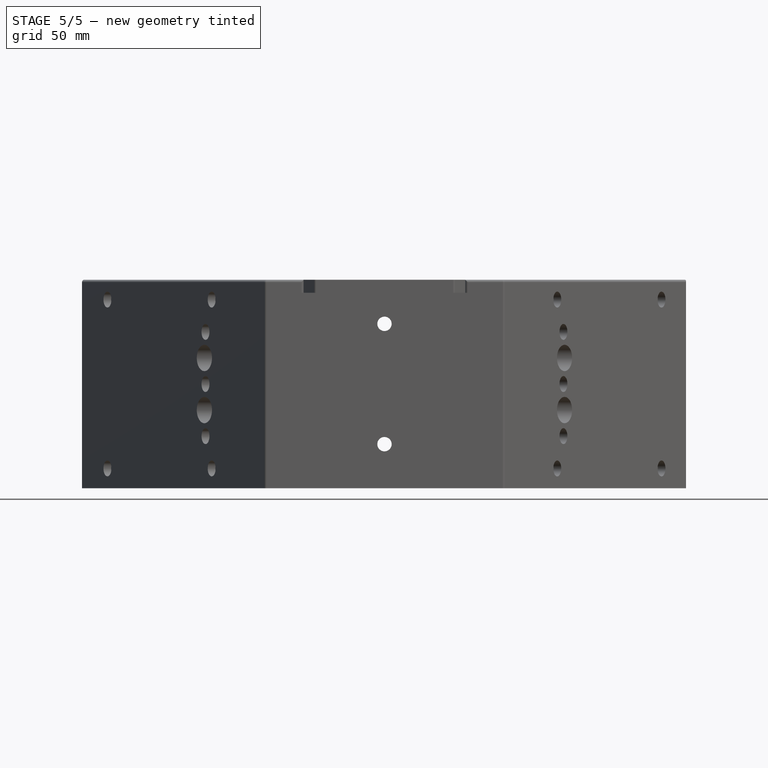
[diagram: stage 5 of 5 — front view after this stage's code; geometry added in this stage tinted green]
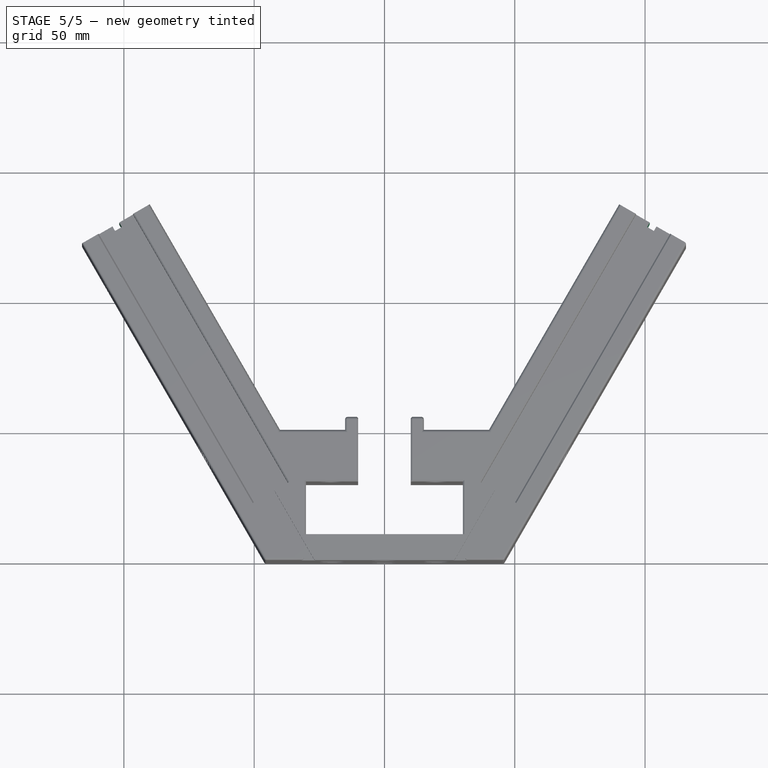
[diagram: stage 5 of 5 — top view after this stage's code; geometry added in this stage tinted green]
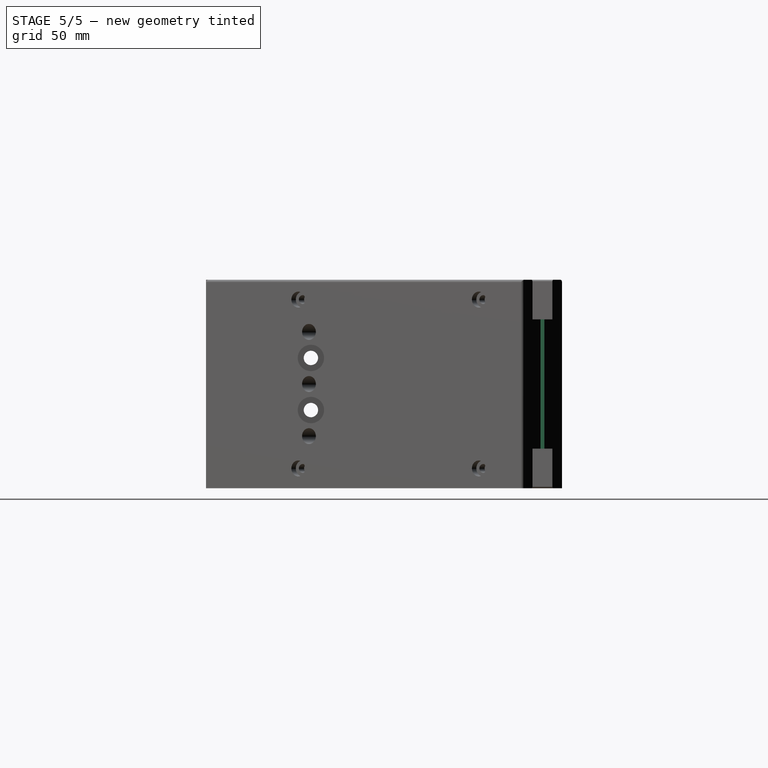
[diagram: stage 5 of 5 — right view after this stage's code; geometry added in this stage tinted green]
FEATURE [PartDesign::Fillet] Fillet
  AddSubType = 0
  Base = -> Mirrored007 [Edge21,Edge91,Edge20,Edge93,Edge67,Edge66,Edge65,Edge64,Edge192,Edge19,Edge17,Edge217,Edge77,Edge78,Edge76,Edge75,Edge40,Edge12,Edge13,Edge15,Edge11,Edge195,Edge216,Edge222,Edge188]
  BaseFeature = -> Mirrored007
  NewSolid = false
  Radius = 1
  Refine = true
  SupportTransform = false
  Suppress = false
  TreeRank = 31
FEATURE [PartDesign::Chamfer] Chamfer
  AddSubType = 0
  Angle = 45
  Base = -> Fillet [Edge107,Edge103,Edge27,Edge29,Edge25,Edge200,Edge36,Edge33,Edge35,Edge37,Edge48,Edge201,Edge93,Edge89]
  BaseFeature = -> Fillet
  ChamferType = 0
  FlipDirection = false
  NewSolid = false
  Refine = true
  Size = 0.5
  Size2 = 1
  SupportTransform = false
  Suppress = false
  TreeRank = 32
FEATURE [Sketcher::SketchObject] Sketch009
  ExternalGeometry = -> [Chamfer]
  FullyConstrained = true
  MapMode = 5
  Placement = pos=(2.3e-15,1.11e-14,64.8) rot=(0,0,1;0rad)
  Support = -> [Chamfer]
  TreeRank = 33
  sketch-geometry (7):
    g0: LineSegment [constr] StartX=96.5086 StartY=132.903 StartZ=0 EndX=101.791 EndY=129.853 EndZ=0
    g1: LineSegment [constr] StartX=101.791 StartY=129.853 StartZ=0 EndX=104.389 EndY=128.353 EndZ=0
    g2: LineSegment [constr] StartX=104.389 StartY=128.353 StartZ=0 EndX=109.672 EndY=125.303 EndZ=0
    g3: LineSegment StartX=101.791 StartY=129.853 StartZ=0 EndX=100.791 EndY=128.12 EndZ=0
    g4: LineSegment StartX=100.791 StartY=128.12 StartZ=0 EndX=103.389 EndY=126.62 EndZ=0
    g5: LineSegment StartX=103.389 StartY=126.62 StartZ=0 EndX=104.389 EndY=128.353 EndZ=0
    g6: LineSegment StartX=104.389 StartY=128.353 StartZ=0 EndX=101.791 EndY=129.853 EndZ=0
  constraints (18):
    c: Coincident(g-3,g0)
    c: PointOnObject(g0,g-3)
    c: Coincident(g0,g1)
    c: PointOnObject(g1,g-3)
    c: Coincident(g1,g2)
    c: Coincident(g2,g-3)
    c: Equal(g0,g2)
    c: Distance(g1) = 3
    c: Coincident(g0,g3)
    c: Coincident(g3,g4)
    c: Coincident(g4,g5)
    c: Coincident(g5,g1)
    c: Coincident(g5,g6)
    c: Coincident(g6,g3)
    c: Parallel(g5,g3)
    c: Parallel(g6,g4)
    c: Distance(g5) = 2
    c: Perpendicular(g6,g5)
FEATURE [PartDesign::Pocket] Pocket002  label="Internal panel notch"
  AddSubType = 1
  BaseFeature = -> Chamfer
  CheckUpToFaceLimits = true
  ClaimChildren = false
  Fit = 0
  FitJoin = 0
  InnerFit = 0
  InnerFitJoin = 0
  InnerTaperAngle = 0
  InnerTaperAngleRev = 0
  Length = 5
  Length2 = 100
  Linearize = true
  NewSolid = false
  Profile = -> Sketch009
  Refine = true
  Suppress = false
  TreeRank = 34
  Type = 2
  _ProfileBasedVersion = 1
  _Version = 1
FEATURE [PartDesign::Mirrored] Mirrored008
  AddSubType = 0
  BaseFeature = -> Pocket002
  CopyShape = false
  MirrorPlane = -> YZ_Plane
  NewSolid = false
  OriginalSubs = -> [Pocket002]
  Originals = -> [Pocket002]
  ParallelTransform = true
  Refine = true
  SubTransform = true
  Suppress = false
  TreeRank = 43
  _Version = 3
FEATURE [PartDesign::Body] Body  label="BottomCorner"
  AutoGroupSolids = false
  ExportMode = 0
  Group = -> [Sketch,Pad,Sketch001,Mirrored,Hole,Sketch002,Mirrored001,Pocket,Sketch003,Mirrored002,Hole001,Sketch004,Mirrored003,Hole002,DatumPlane,Sketch005,Mirrored004,Hole003,Sketch006,Sketch007,Mirrored005,Loft,Sketch008,Mirrored006,Pocket001,Mirrored007,Fillet,Chamfer,Sketch009,Pocket002,Mirrored008]
  Origin = -> Origin
  Tip = -> Mirrored008
  TreeRank = 12
  _ExportChildren = -> [Pad,Mirrored,Hole,Mirrored001,Pocket,Mirrored002,Hole001,Mirrored003,Hole002,DatumPlane,Mirrored004,Hole003,Mirrored005,Loft,Mirrored006,Pocket001,Mirrored007,Fillet,Chamfer,Pocket002,Mirrored008]
  _GroupVersion = 1
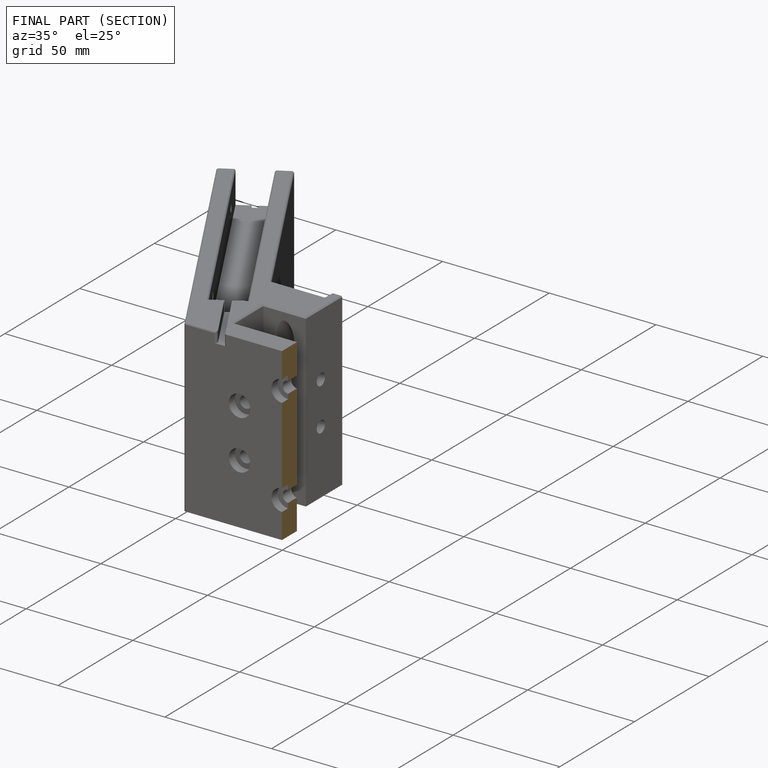
[diagram: finished part — half-section view (interior)]
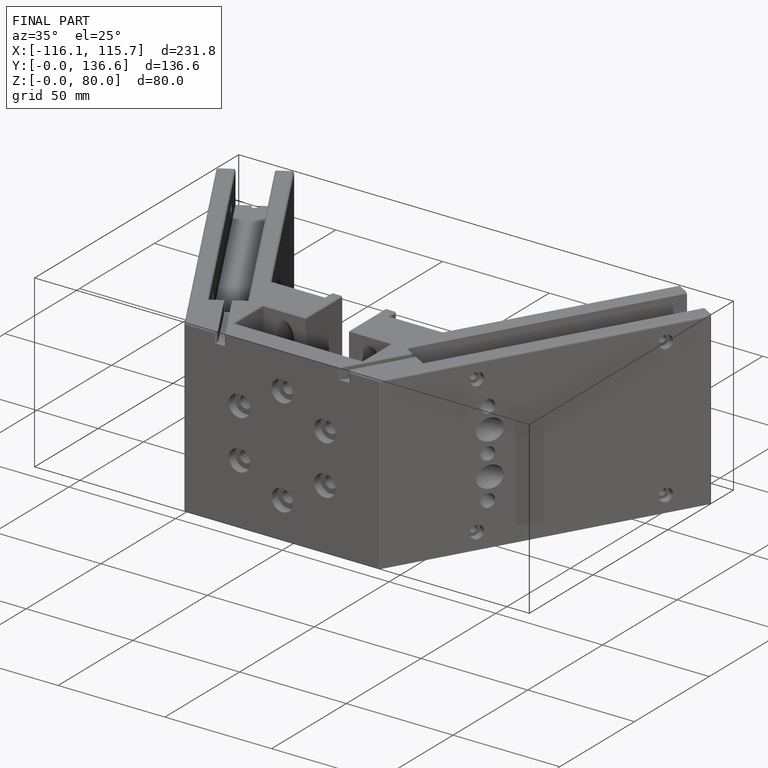
[diagram: finished part — iso view with bounding-box wireframe]
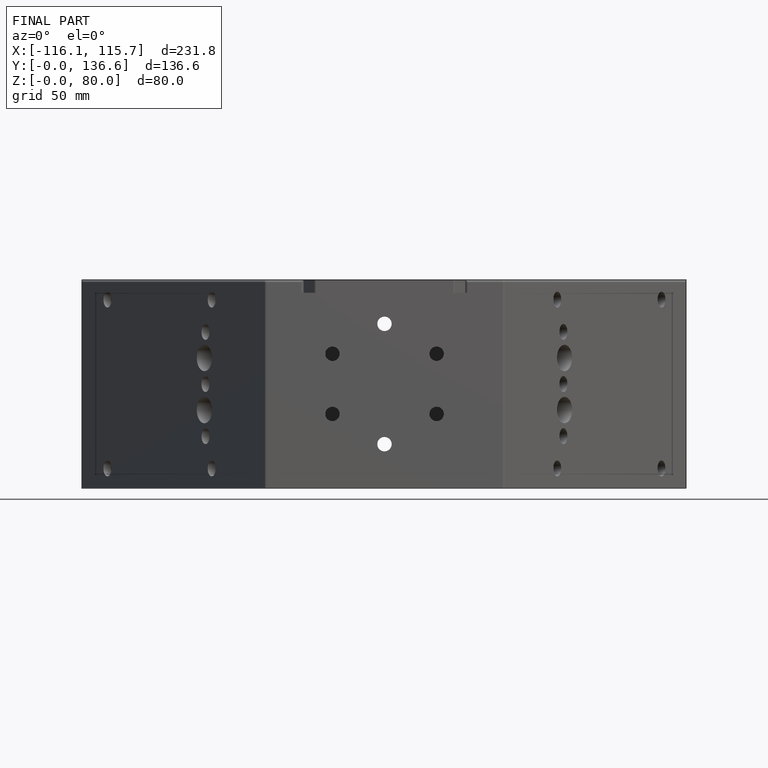
[diagram: finished part — front view with bounding-box wireframe]
